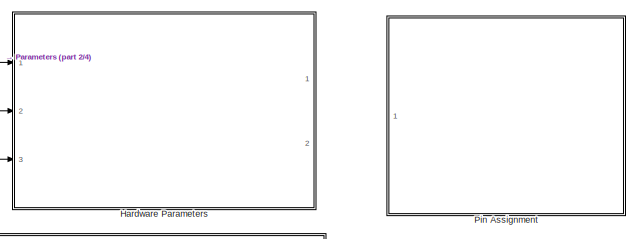
[diagram: root canvas - part 1/4, top right region]
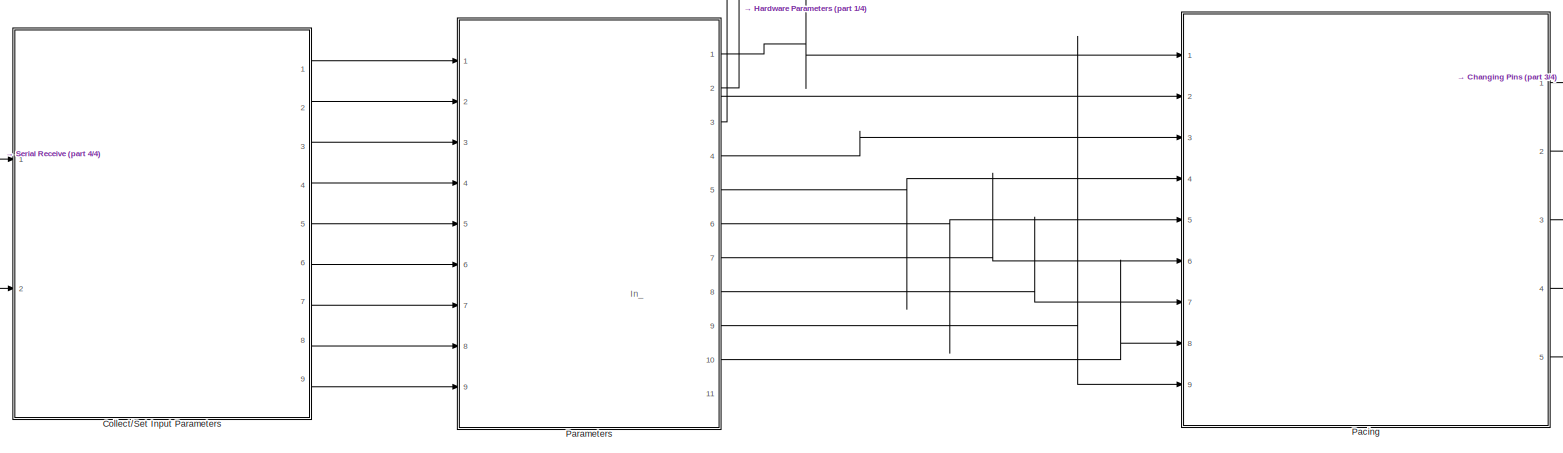
[diagram: root canvas - part 2/4, central region]
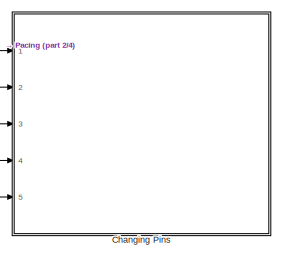
[diagram: root canvas - part 3/4, middle right region]
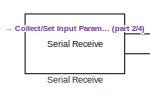
[diagram: root canvas - part 4/4, bottom left region]
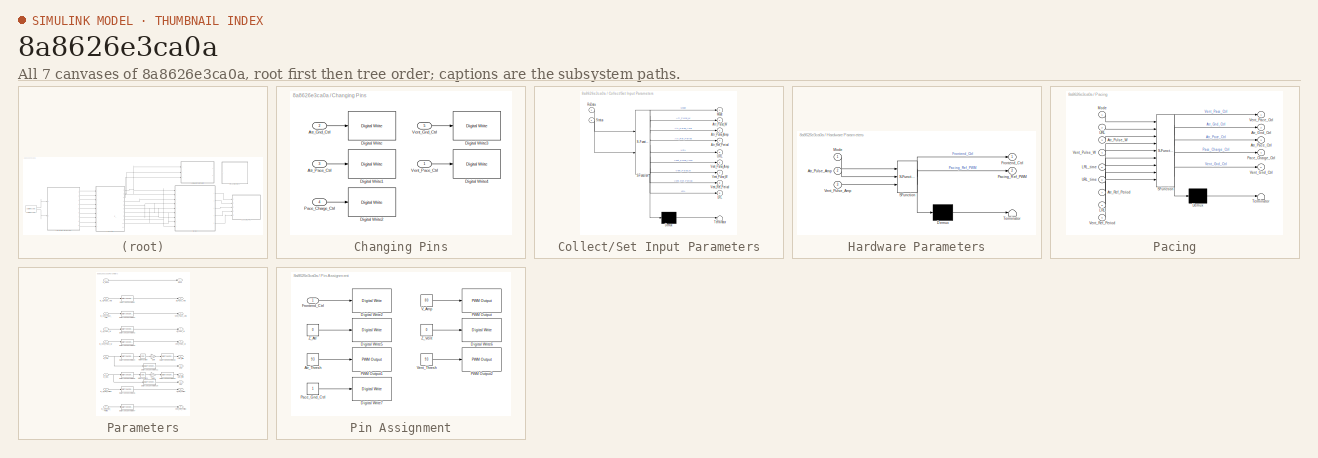
[diagram: thumbnail index - all 7 canvases of the model, root first then tree order]
MODEL slx_8a8626e3ca0a
KIND model
CONFIG AbsTol = auto
CONFIG EnableMultiTasking = on
CONFIG FixedStep = 1e-3
CONFIG MaxStep = auto
CONFIG MinStep = auto
CONFIG RelTol = 1e-3
CONFIG SampleTimeConstraint = Unconstrained
CONFIG SolverName = FixedStepAuto
CONFIG StartTime = 0.0
CONFIG StopTime = 60
BLOCK [SubSystem] Changing Pins
  Ports = [5]
  RequestExecContextInheritance = off
BLOCK [Inport] Changing Pins/Atr_Gnd_Ctrl
  Port = 2
BLOCK [Inport] Changing Pins/Atr_Pace_Ctrl
  Port = 3
BLOCK [Reference] Changing Pins/Digital Write  REF=frdmk64flib/Digital Write
  Ports = [1]
  SourceBlock = frdmk64flib/Digital Write
  SourceProductBaseCode = EC_FRDM_K64F
  SourceType = freedomk64f.DigitalWrite
BLOCK [Reference] Changing Pins/Digital Write1  REF=frdmk64flib/Digital Write
  Ports = [1]
  SourceBlock = frdmk64flib/Digital Write
  SourceProductBaseCode = EC_FRDM_K64F
  SourceType = freedomk64f.DigitalWrite
BLOCK [Reference] Changing Pins/Digital Write2  REF=frdmk64flib/Digital Write
  Ports = [1]
  SourceBlock = frdmk64flib/Digital Write
  SourceProductBaseCode = EC_FRDM_K64F
  SourceType = freedomk64f.DigitalWrite
BLOCK [Reference] Changing Pins/Digital Write3  REF=frdmk64flib/Digital Write
  Ports = [1]
  SourceBlock = frdmk64flib/Digital Write
  SourceProductBaseCode = EC_FRDM_K64F
  SourceType = freedomk64f.DigitalWrite
BLOCK [Reference] Changing Pins/Digital Write4  REF=frdmk64flib/Digital Write
  Ports = [1]
  SourceBlock = frdmk64flib/Digital Write
  SourceProductBaseCode = EC_FRDM_K64F
  SourceType = freedomk64f.DigitalWrite
BLOCK [Inport] Changing Pins/Pace_Charge_Ctrl
  Port = 4
BLOCK [Inport] Changing Pins/Vent_Gnd_Ctrl
  Port = 5
BLOCK [Inport] Changing Pins/Vent_Pace_Ctrl
BLOCK [SubSystem] Collect//Set Input Parameters
  ErrorFcn = Stateflow.Translate.translate
  PermitHierarchicalResolution = ExplicitOnly
  PortSchema = {"entries":[{"content":{"sides":[{"content":{"connectorIds":["In1","In2"]},"type":"ConnectorPlacement.EquallySpacedRectSide","uuid":"dc51e4f5-5341-418f-80a9-38d3dc8e9b6e"},{"content":{"connectorIds":["Out1","Out3","Out6","Out2","Out7","Out9","Out5","Out4","Out8"],"side":"RIGHT"},"type":"ConnectorPlacement.EquallySpacedRectSide","uuid":"313c6298-b0b7-4ff0-85ba-dbaa1c18177a"},{"content":{"connectorI...<+302ch>
  Ports = [2, 9]
  RequestExecContextInheritance = off
  SFBlockType = Chart
  TreatAsAtomicUnit = on
BLOCK [Demux] Collect//Set Input Parameters/ Demux 
  Outputs = 1
  Ports = [1, 1]
BLOCK [S-Function] Collect//Set Input Parameters/ SFunction 
  EnableBusSupport = on
  FunctionName = sf_sfun
  PortCounts = [2 10]
  Ports = [2, 10]
  SFcnIsStateOwnerBlock = off
  SFunctionDeploymentMode = off
  Tag = Stateflow S-Function 3
BLOCK [Terminator] Collect//Set Input Parameters/ Terminator 
BLOCK [Outport] Collect//Set Input Parameters/Atr_Pulse_Amp
  Port = 3
BLOCK [Outport] Collect//Set Input Parameters/Atr_Pulse_W
  Port = 2
BLOCK [Outport] Collect//Set Input Parameters/Atr_Ref_Period
  Port = 4
BLOCK [Outport] Collect//Set Input Parameters/LRL
  Port = 9
BLOCK [Outport] Collect//Set Input Parameters/Mode
BLOCK [Inport] Collect//Set Input Parameters/RxData
BLOCK [Inport] Collect//Set Input Parameters/Status
  Port = 2
BLOCK [Outport] Collect//Set Input Parameters/URL
  Port = 5
BLOCK [Outport] Collect//Set Input Parameters/Vent_Pulse_Amp
  Port = 6
BLOCK [Outport] Collect//Set Input Parameters/Vent_Pulse_W
  Port = 7
BLOCK [Outport] Collect//Set Input Parameters/Vent_Ref_Period
  Port = 8
BLOCK [SubSystem] Hardware Parameters
  ErrorFcn = Stateflow.Translate.translate
  PermitHierarchicalResolution = ExplicitOnly
  Ports = [3, 2]
  RequestExecContextInheritance = off
  SFBlockType = Chart
  TreatAsAtomicUnit = on
BLOCK [Demux] Hardware Parameters/ Demux 
  Outputs = 1
  Ports = [1, 1]
BLOCK [S-Function] Hardware Parameters/ SFunction 
  EnableBusSupport = on
  FunctionName = sf_sfun
  PortCounts = [3 3]
  Ports = [3, 3]
  SFcnIsStateOwnerBlock = off
  SFunctionDeploymentMode = off
  Tag = Stateflow S-Function 2
BLOCK [Terminator] Hardware Parameters/ Terminator 
BLOCK [Inport] Hardware Parameters/Atr_Pulse_Amp
  Port = 2
BLOCK [Outport] Hardware Parameters/Frontend_Ctrl
BLOCK [Inport] Hardware Parameters/Mode
BLOCK [Outport] Hardware Parameters/Pacing_Ref_PWM
  Port = 2
BLOCK [Inport] Hardware Parameters/Vent_Pulse_Amp
  Port = 3
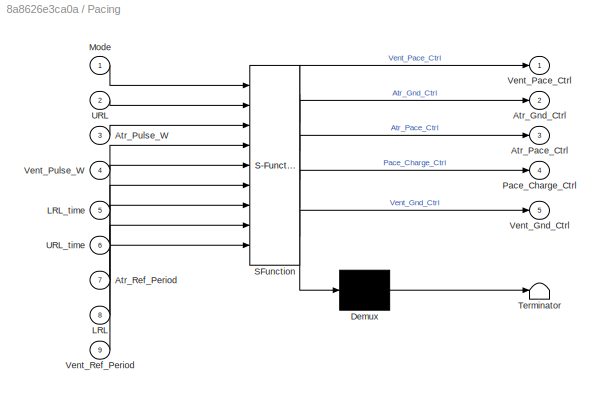
BLOCK [SubSystem] Pacing
  ErrorFcn = Stateflow.Translate.translate
  PermitHierarchicalResolution = ExplicitOnly
  PortSchema = {"entries":[{"content":{"sides":[{"content":{"connectorIds":["In9","In1","In3","In6","In7","In8","In4","In5","In2"]},"type":"ConnectorPlacement.EquallySpacedRectSide","uuid":"cbd26b3d-27cb-4744-9a6d-2e29f16e2c2e"},{"content":{"connectorIds":["Out1","Out2","Out3","Out4","Out5"],"side":"RIGHT"},"type":"ConnectorPlacement.EquallySpacedRectSide","uuid":"25c89074-e17e-4898-a31a-c42a3e343a2e"},{"content...<+316ch>
  Ports = [9, 5]
  RequestExecContextInheritance = off
  SFBlockType = Chart
  TreatAsAtomicUnit = on
BLOCK [Demux] Pacing/ Demux 
  Outputs = 1
  Ports = [1, 1]
BLOCK [S-Function] Pacing/ SFunction 
  EnableBusSupport = on
  FunctionName = sf_sfun
  PortCounts = [9 6]
  Ports = [9, 6]
  SFcnIsStateOwnerBlock = off
  SFunctionDeploymentMode = off
  Tag = Stateflow S-Function 4
BLOCK [Terminator] Pacing/ Terminator 
BLOCK [Outport] Pacing/Atr_Gnd_Ctrl
  Port = 2
BLOCK [Outport] Pacing/Atr_Pace_Ctrl
  Port = 3
BLOCK [Inport] Pacing/Atr_Pulse_W
  Port = 3
BLOCK [Inport] Pacing/Atr_Ref_Period
  Port = 7
BLOCK [Inport] Pacing/LRL
  Port = 8
BLOCK [Inport] Pacing/LRL_time
  Port = 5
BLOCK [Inport] Pacing/Mode
BLOCK [Outport] Pacing/Pace_Charge_Ctrl
  Port = 4
BLOCK [Inport] Pacing/URL
  Port = 2
BLOCK [Inport] Pacing/URL_time
  Port = 6
BLOCK [Outport] Pacing/Vent_Gnd_Ctrl
  Port = 5
BLOCK [Outport] Pacing/Vent_Pace_Ctrl
BLOCK [Inport] Pacing/Vent_Pulse_W
  Port = 4
BLOCK [Inport] Pacing/Vent_Ref_Period
  Port = 9
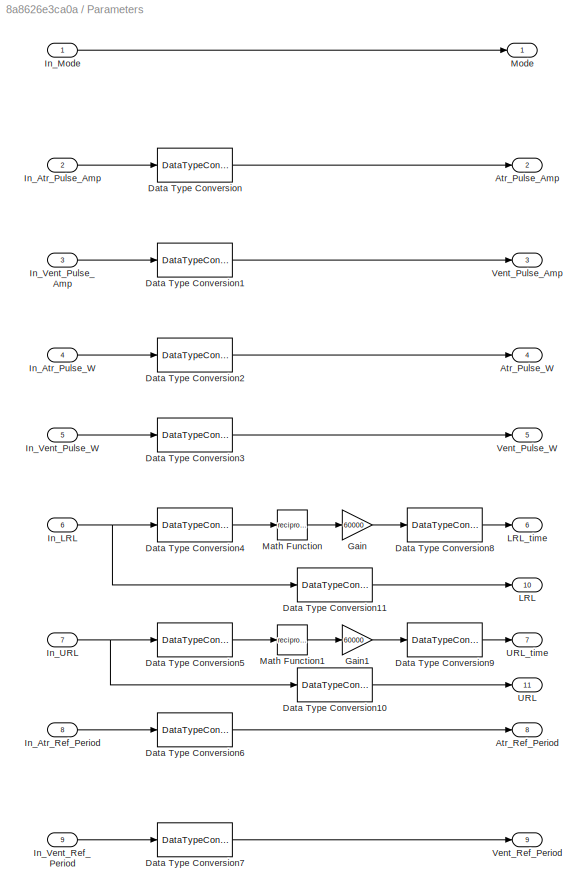
BLOCK [SubSystem] Parameters
  Ports = [9, 11]
  RequestExecContextInheritance = off
BLOCK [Outport] Parameters/Atr_Pulse_Amp
  Port = 2
BLOCK [Outport] Parameters/Atr_Pulse_W
  Port = 4
BLOCK [Outport] Parameters/Atr_Ref_Period
  Port = 8
BLOCK [DataTypeConversion] Parameters/Data Type Conversion
  OutDataTypeStr = uint16
  RndMeth = Floor
  SaturateOnIntegerOverflow = off
BLOCK [DataTypeConversion] Parameters/Data Type Conversion1
  OutDataTypeStr = uint16
  RndMeth = Floor
  SaturateOnIntegerOverflow = off
BLOCK [DataTypeConversion] Parameters/Data Type Conversion10
  OutDataTypeStr = uint16
  RndMeth = Floor
  SaturateOnIntegerOverflow = off
BLOCK [DataTypeConversion] Parameters/Data Type Conversion11
  OutDataTypeStr = uint16
  RndMeth = Floor
  SaturateOnIntegerOverflow = off
BLOCK [DataTypeConversion] Parameters/Data Type Conversion2
  OutDataTypeStr = uint16
  RndMeth = Floor
  SaturateOnIntegerOverflow = off
BLOCK [DataTypeConversion] Parameters/Data Type Conversion3
  OutDataTypeStr = uint16
  RndMeth = Floor
  SaturateOnIntegerOverflow = off
BLOCK [DataTypeConversion] Parameters/Data Type Conversion4
  OutDataTypeStr = double
  RndMeth = Floor
  SaturateOnIntegerOverflow = off
BLOCK [DataTypeConversion] Parameters/Data Type Conversion5
  OutDataTypeStr = double
  RndMeth = Floor
  SaturateOnIntegerOverflow = off
BLOCK [DataTypeConversion] Parameters/Data Type Conversion6
  OutDataTypeStr = uint16
  RndMeth = Floor
  SaturateOnIntegerOverflow = off
BLOCK [DataTypeConversion] Parameters/Data Type Conversion7
  OutDataTypeStr = uint16
  RndMeth = Floor
  SaturateOnIntegerOverflow = off
BLOCK [DataTypeConversion] Parameters/Data Type Conversion8
  OutDataTypeStr = uint16
  RndMeth = Floor
  SaturateOnIntegerOverflow = off
BLOCK [DataTypeConversion] Parameters/Data Type Conversion9
  OutDataTypeStr = uint16
  RndMeth = Floor
  SaturateOnIntegerOverflow = off
BLOCK [Gain] Parameters/Gain
  Gain = 60000
BLOCK [Gain] Parameters/Gain1
  Gain = 60000
BLOCK [Inport] Parameters/In_Atr_Pulse_Amp
  Port = 2
BLOCK [Inport] Parameters/In_Atr_Pulse_W
  Port = 4
BLOCK [Inport] Parameters/In_Atr_Ref_Period
  Port = 8
BLOCK [Inport] Parameters/In_LRL
  Port = 6
BLOCK [Inport] Parameters/In_Mode
BLOCK [Inport] Parameters/In_URL
  Port = 7
BLOCK [Inport] Parameters/In_Vent_Pulse_Amp
  Port = 3
BLOCK [Inport] Parameters/In_Vent_Pulse_W
  Port = 5
BLOCK [Inport] Parameters/In_Vent_Ref_Period
  Port = 9
BLOCK [Outport] Parameters/LRL
  Port = 10
BLOCK [Outport] Parameters/LRL_time
  Port = 6
BLOCK [Math] Parameters/Math Function
  Operator = reciprocal
  Ports = [1, 1]
BLOCK [Math] Parameters/Math Function1
  Operator = reciprocal
  Ports = [1, 1]
BLOCK [Outport] Parameters/Mode
BLOCK [Outport] Parameters/URL
  Port = 11
BLOCK [Outport] Parameters/URL_time
  Port = 7
BLOCK [Outport] Parameters/Vent_Pulse_Amp
  Port = 3
BLOCK [Outport] Parameters/Vent_Pulse_W
  Port = 5
BLOCK [Outport] Parameters/Vent_Ref_Period
  Port = 9
BLOCK [SubSystem] Pin Assignment
  Ports = [1]
  RequestExecContextInheritance = off
BLOCK [Constant] Pin Assignment/Atr_Thresh
  Value = 93
BLOCK [Reference] Pin Assignment/Digital Write2  REF=frdmk64flib/Digital Write
  Ports = [1]
  SourceBlock = frdmk64flib/Digital Write
  SourceProductBaseCode = EC_FRDM_K64F
  SourceType = freedomk64f.DigitalWrite
BLOCK [Reference] Pin Assignment/Digital Write5  REF=frdmk64flib/Digital Write
  Ports = [1]
  SourceBlock = frdmk64flib/Digital Write
  SourceProductBaseCode = EC_FRDM_K64F
  SourceType = freedomk64f.DigitalWrite
BLOCK [Reference] Pin Assignment/Digital Write6  REF=frdmk64flib/Digital Write
  Ports = [1]
  SourceBlock = frdmk64flib/Digital Write
  SourceProductBaseCode = EC_FRDM_K64F
  SourceType = freedomk64f.DigitalWrite
BLOCK [Reference] Pin Assignment/Digital Write7  REF=frdmk64flib/Digital Write
  Ports = [1]
  SourceBlock = frdmk64flib/Digital Write
  SourceProductBaseCode = EC_FRDM_K64F
  SourceType = freedomk64f.DigitalWrite
BLOCK [Inport] Pin Assignment/Frontend_Ctrl
BLOCK [Reference] Pin Assignment/PWM Output  REF=frdmk64flib/PWM Output
  Ports = [1]
  SourceBlock = frdmk64flib/PWM Output
  SourceProductBaseCode = EC_FRDM_K64F
  SourceType = freedomk64f.PWMOutput
BLOCK [Reference] Pin Assignment/PWM Output1  REF=frdmk64flib/PWM Output
  Ports = [1]
  SourceBlock = frdmk64flib/PWM Output
  SourceProductBaseCode = EC_FRDM_K64F
  SourceType = freedomk64f.PWMOutput
BLOCK [Reference] Pin Assignment/PWM Output2  REF=frdmk64flib/PWM Output
  Ports = [1]
  SourceBlock = frdmk64flib/PWM Output
  SourceProductBaseCode = EC_FRDM_K64F
  SourceType = freedomk64f.PWMOutput
BLOCK [Constant] Pin Assignment/Pace_Gnd_Ctrl
BLOCK [Constant] Pin Assignment/V_Amp
  Value = 80
BLOCK [Constant] Pin Assignment/Vent_Thresh
  Value = 93
BLOCK [Constant] Pin Assignment/Z_Atr
  Value = 0
BLOCK [Constant] Pin Assignment/Z_Vent
  Value = 0
BLOCK [Reference] Serial Receive  REF=frdmk64flib/Serial Receive
  Ports = [0, 2]
  SourceBlock = frdmk64flib/Serial Receive
  SourceProductBaseCode = EC_FRDM_K64F
  SourceType = freedomk64f.SCIRead
ANNOTATION (root): In_
LINE Changing Pins/Atr_Gnd_Ctrl:1 -> Changing Pins/Digital Write:1
LINE Changing Pins/Atr_Pace_Ctrl:1 -> Changing Pins/Digital Write1:1
LINE Changing Pins/Pace_Charge_Ctrl:1 -> Changing Pins/Digital Write2:1
LINE Changing Pins/Vent_Gnd_Ctrl:1 -> Changing Pins/Digital Write3:1
LINE Changing Pins/Vent_Pace_Ctrl:1 -> Changing Pins/Digital Write4:1
LINE Collect//Set Input Parameters:1 -> Parameters:1
LINE Collect//Set Input Parameters:2 -> Parameters:4
LINE Collect//Set Input Parameters:3 -> Parameters:2
LINE Collect//Set Input Parameters:4 -> Parameters:8
LINE Collect//Set Input Parameters:5 -> Parameters:7
LINE Collect//Set Input Parameters:6 -> Parameters:3
LINE Collect//Set Input Parameters:7 -> Parameters:5
LINE Collect//Set Input Parameters:8 -> Parameters:9
LINE Collect//Set Input Parameters:9 -> Parameters:6
LINE Pacing:1 -> Changing Pins:1
LINE Pacing:2 -> Changing Pins:2
LINE Pacing:3 -> Changing Pins:3
LINE Pacing:4 -> Changing Pins:4
LINE Pacing:5 -> Changing Pins:5
LINE Parameters/Data Type Conversion10:1 -> Parameters/URL:1
LINE Parameters/Data Type Conversion11:1 -> Parameters/LRL:1
LINE Parameters/Data Type Conversion1:1 -> Parameters/Vent_Pulse_Amp:1
LINE Parameters/Data Type Conversion2:1 -> Parameters/Atr_Pulse_W:1
LINE Parameters/Data Type Conversion3:1 -> Parameters/Vent_Pulse_W:1
LINE Parameters/Data Type Conversion4:1 -> Parameters/Math Function:1
LINE Parameters/Data Type Conversion5:1 -> Parameters/Math Function1:1
LINE Parameters/Data Type Conversion6:1 -> Parameters/Atr_Ref_Period:1
LINE Parameters/Data Type Conversion7:1 -> Parameters/Vent_Ref_Period:1
LINE Parameters/Data Type Conversion8:1 -> Parameters/LRL_time:1
LINE Parameters/Data Type Conversion9:1 -> Parameters/URL_time:1
LINE Parameters/Data Type Conversion:1 -> Parameters/Atr_Pulse_Amp:1
LINE Parameters/Gain1:1 -> Parameters/Data Type Conversion9:1
LINE Parameters/Gain:1 -> Parameters/Data Type Conversion8:1
LINE Parameters/In_Atr_Pulse_Amp:1 -> Parameters/Data Type Conversion:1
LINE Parameters/In_Atr_Pulse_W:1 -> Parameters/Data Type Conversion2:1
LINE Parameters/In_Atr_Ref_Period:1 -> Parameters/Data Type Conversion6:1
NET Parameters/In_LRL:1 -> Parameters/Data Type Conversion11:1, Parameters/Data Type Conversion4:1
LINE Parameters/In_Mode:1 -> Parameters/Mode:1
NET Parameters/In_URL:1 -> Parameters/Data Type Conversion10:1, Parameters/Data Type Conversion5:1
LINE Parameters/In_Vent_Pulse_Amp:1 -> Parameters/Data Type Conversion1:1
LINE Parameters/In_Vent_Pulse_W:1 -> Parameters/Data Type Conversion3:1
LINE Parameters/In_Vent_Ref_Period:1 -> Parameters/Data Type Conversion7:1
LINE Parameters/Math Function1:1 -> Parameters/Gain1:1
LINE Parameters/Math Function:1 -> Parameters/Gain:1
NET Parameters:1 -> Hardware Parameters:1, Pacing:1
LINE Parameters:10 -> Pacing:8
LINE Parameters:11 -> Pacing:2
LINE Parameters:2 -> Hardware Parameters:2
LINE Parameters:3 -> Hardware Parameters:3
LINE Parameters:4 -> Pacing:3
LINE Parameters:5 -> Pacing:4
LINE Parameters:6 -> Pacing:5
LINE Parameters:7 -> Pacing:6
LINE Parameters:8 -> Pacing:7
LINE Parameters:9 -> Pacing:9
LINE Pin Assignment/Atr_Thresh:1 -> Pin Assignment/PWM Output1:1
LINE Pin Assignment/Frontend_Ctrl:1 -> Pin Assignment/Digital Write2:1
LINE Pin Assignment/Pace_Gnd_Ctrl:1 -> Pin Assignment/Digital Write7:1
LINE Pin Assignment/V_Amp:1 -> Pin Assignment/PWM Output:1
LINE Pin Assignment/Vent_Thresh:1 -> Pin Assignment/PWM Output2:1
LINE Pin Assignment/Z_Atr:1 -> Pin Assignment/Digital Write5:1
LINE Pin Assignment/Z_Vent:1 -> Pin Assignment/Digital Write6:1
LINE Serial Receive:1 -> Collect//Set Input Parameters:1
LINE Serial Receive:2 -> Collect//Set Input Parameters:2
note: NET lines group one-source signal fan-out (src -> all destinations, sorted); 1:1 wires keep LINE
CHART Pacing states=6 transitions=12
  STATE_LABEL 'VOO_Charge\nentry:\nVent_Pace_Ctrl = false;\nVent_Gnd_Ctrl = true;\nPace_Charge_Ctrl = true;\n'
  STATE_LABEL 'VOO_Discharge\nentry:\nVent_Pace_Ctrl = true;\nVent_Gnd_Ctrl = false;\nPace_Charge_Ctrl = false;\n'
  STATE_LABEL 'Initial_State\nentry:\n'
  STATE_LABEL 'Light\nentry:\nGreen = true;'
  STATE_LABEL 'AOO_Charge\nentry:\nAtr_Gnd_Ctrl = true;\nAtr_Pace_Ctrl = false;\nPace_Charge_Ctrl = true;\n'
  STATE_LABEL 'AOO_Discharge\nentry:\nAtr_Gnd_Ctrl = false;\nAtr_Pace_Ctrl = true;\nPace_Charge_Ctrl = false;'
CHART Hardware Parameters states=3 transitions=3
  STATE_LABEL 'Set_Parameters_VOO_VOOR\nentry:\nPacing_Ref_PWM = (Vent_Pulse_Amp/5)*100;\nFrontend_Ctrl = false;'
  STATE_LABEL 'Initialize_Variables\nentry:\nFrontend_Ctrl = false;'
  STATE_LABEL 'Set_Parameters_AOO_AOOR\nentry:\nPacing_Ref_PWM = (Atr_Pulse_Amp/5)*100;\nFrontend_Ctrl = false;'
CHART Collect//Set Input Parameters states=2 transitions=5
  STATE_LABEL 'Input_Parameters\nentry:\nMode = RxData(2);\nLRL = RxData(3);\nURL = RxData(4);\nVent_Pulse_W = RxData(5);\nAtr_Pulse_W = RxData(6);\nVent_Pulse_Amp = RxData(7);\nAtr_Pulse_Amp = RxData(8);\nVent_Ref_Period = RxData(9);\nAtr_Ref_Period = RxData(10);'
  STATE_LABEL 'Wait_For_Transmission'
CHART  states=0 transitions=0
CHART  states=0 transitions=0
CHART  states=0 transitions=0
